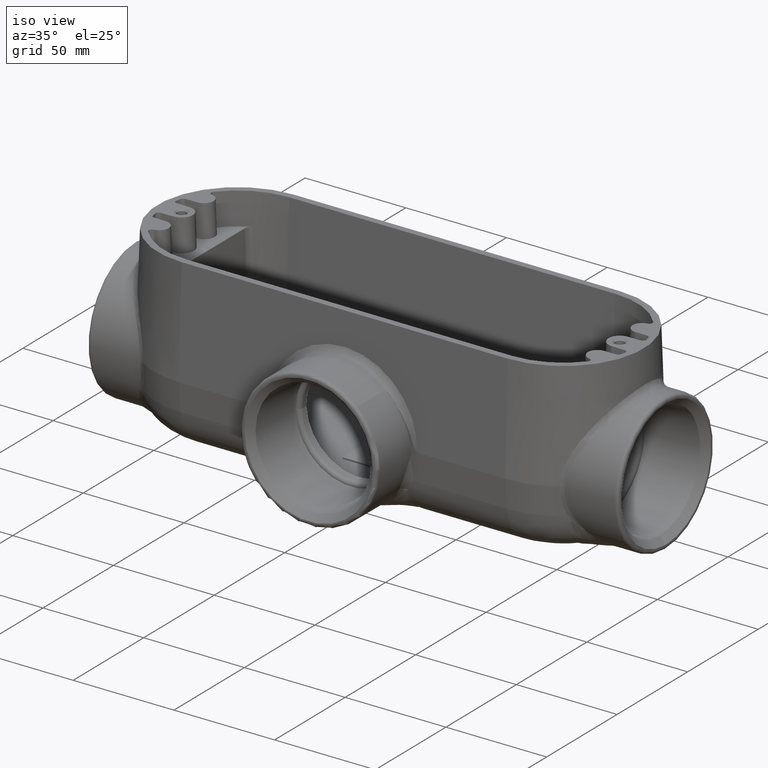
[diagram: clean part render]
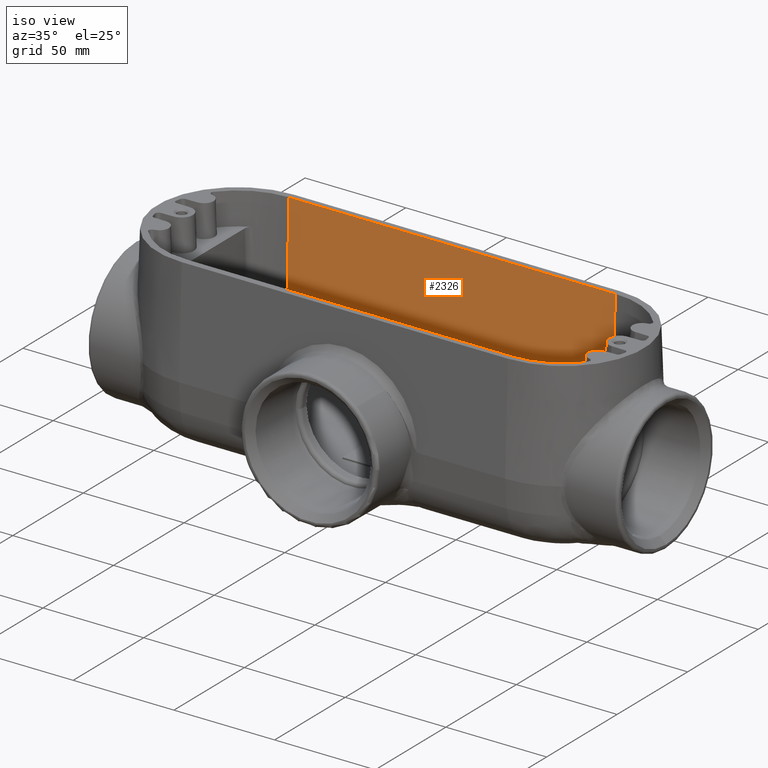
[diagram: same view with one face highlighted and labeled with its STEP entity id]
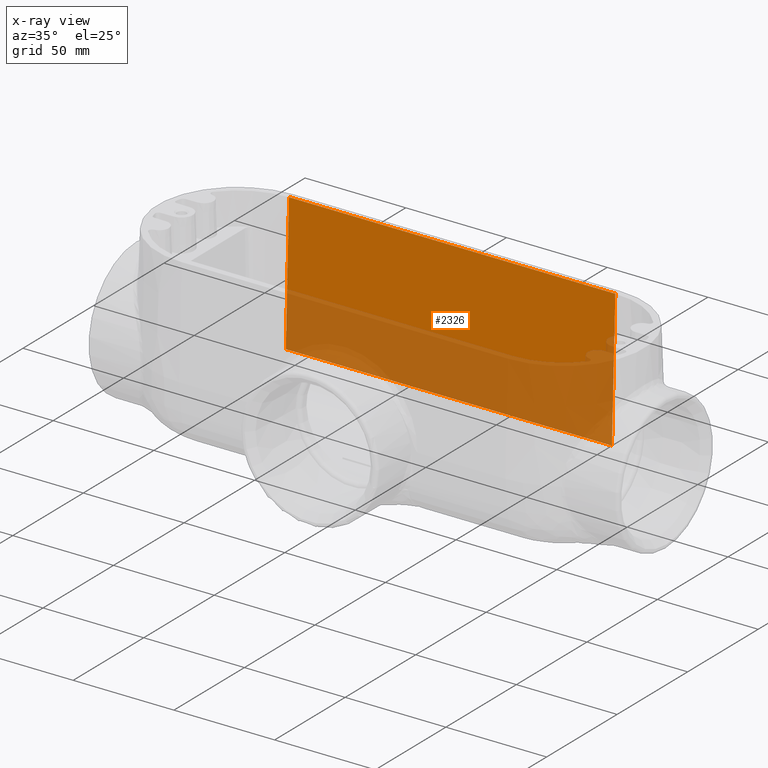
[diagram: x-ray of the same camera — body ghosted, the highlighted face saturated]
A machine part, iso view. The second image highlights one B-rep face of the part: STEP entity #2326.
The next image is the same camera in x-ray: the body ghosted, the highlighted face saturated — about 42% of this face is hidden behind the body in this view.
In plain terms, the highlighted planar face has unit normal (-0, 0.9994, -0.0349).
Its self-contained STEP definition (entity closure, byte-faithful):
#216=FACE_OUTER_BOUND('',#378,.T.);
#378=EDGE_LOOP('',(#1759,#1760,#1761,#1762));
#613=LINE('',#3881,#737);
#622=LINE('',#3939,#746);
#641=LINE('',#4908,#765);
#651=LINE('',#6362,#775);
#737=VECTOR('',#2831,2.65060808280998);
#746=VECTOR('',#2850,2.65060808280998);
#765=VECTOR('',#2933,6.375);
#775=VECTOR('',#3015,6.375);
#1024=VERTEX_POINT('',#3878);
#1025=VERTEX_POINT('',#3880);
#1040=VERTEX_POINT('',#3929);
#1041=VERTEX_POINT('',#3938);
#1256=EDGE_CURVE('',#1025,#1024,#613,.T.);
#1272=EDGE_CURVE('',#1040,#1041,#622,.T.);
#1320=EDGE_CURVE('',#1024,#1041,#641,.T.);
#1377=EDGE_CURVE('',#1040,#1025,#651,.F.);
#1759=ORIENTED_EDGE('',*,*,#1272,.F.);
#1760=ORIENTED_EDGE('',*,*,#1377,.T.);
#1761=ORIENTED_EDGE('',*,*,#1256,.T.);
#1762=ORIENTED_EDGE('',*,*,#1320,.T.);
#2266=PLANE('',#2571);
#2326=ADVANCED_FACE('',(#216),#2266,.F.);
#2571=AXIS2_PLACEMENT_3D('',#6361,#3013,#3014);
#2831=DIRECTION('',(-1.07121590291266E-13,0.034899496702501,0.999390827019096));
#2850=DIRECTION('',(-1.07385436572772E-13,0.034899496702501,0.999390827019096));
#2933=DIRECTION('',(-1.,-3.07642680136582E-12,0.));
#3013=DIRECTION('center_axis',(-3.07455101222418E-12,0.999390827019096,
-0.034899496702501));
#3014=DIRECTION('ref_axis',(0.,0.034899496702501,0.999390827019096));
#3015=DIRECTION('',(-1.,-3.07642680136582E-12,0.));
#3878=CARTESIAN_POINT('',(5.12499999999558,0.78125,-1.11022302462516E-16));
#3880=CARTESIAN_POINT('',(5.12499999999586,0.688745111954351,-2.64899340398297));
#3881=CARTESIAN_POINT('',(5.12499999999586,0.688745111954351,-2.64899340398297));
#3929=CARTESIAN_POINT('',(-1.25000000000414,0.68874511193474,-2.64899340398297));
#3938=CARTESIAN_POINT('',(-1.25000000000442,0.78124999998039,-1.11022302462516E-16));
#3939=CARTESIAN_POINT('',(-1.25000000000414,0.68874511193474,-2.64899340398297));
#4908=CARTESIAN_POINT('',(5.12499999999558,0.78125,-1.11022302462516E-16));
#6361=CARTESIAN_POINT('Origin',(1.93749999999558,0.781249999990194,-1.11022302462516E-16));
#6362=CARTESIAN_POINT('',(5.12499999999586,0.688745111954351,-2.64899340398297));